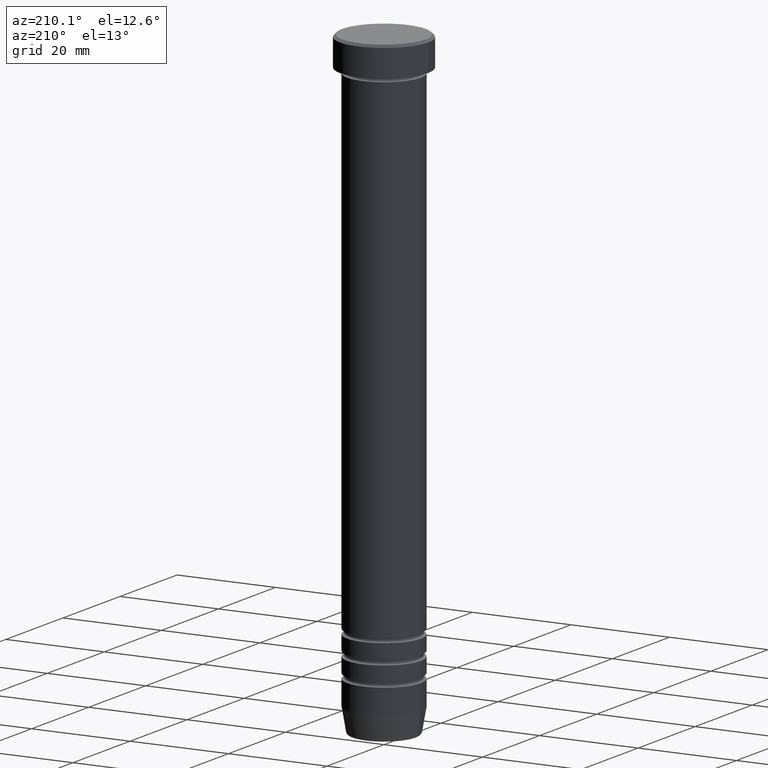
[diagram: clean part render]
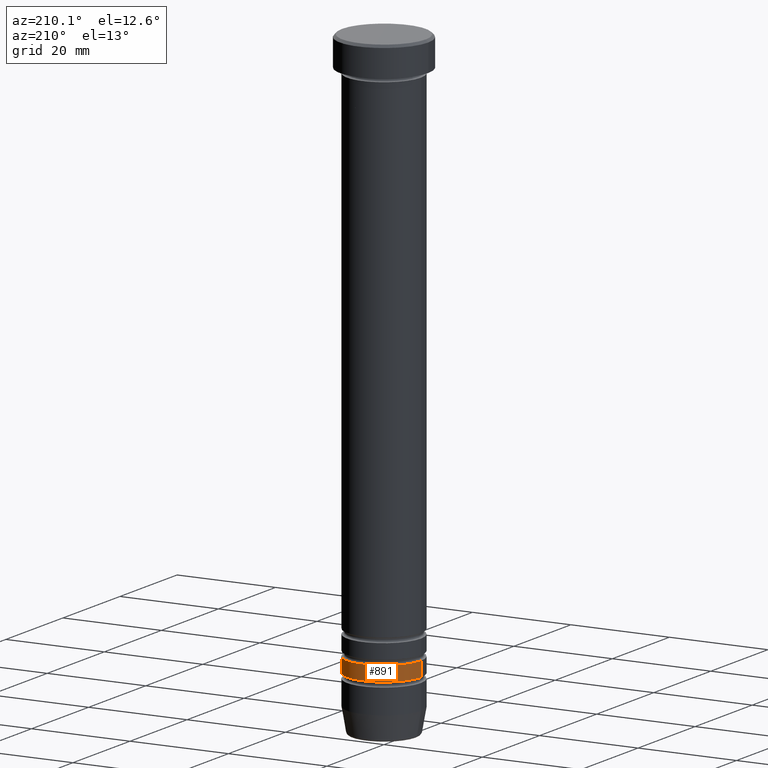
[diagram: same view with one face highlighted and labeled with its STEP entity id]
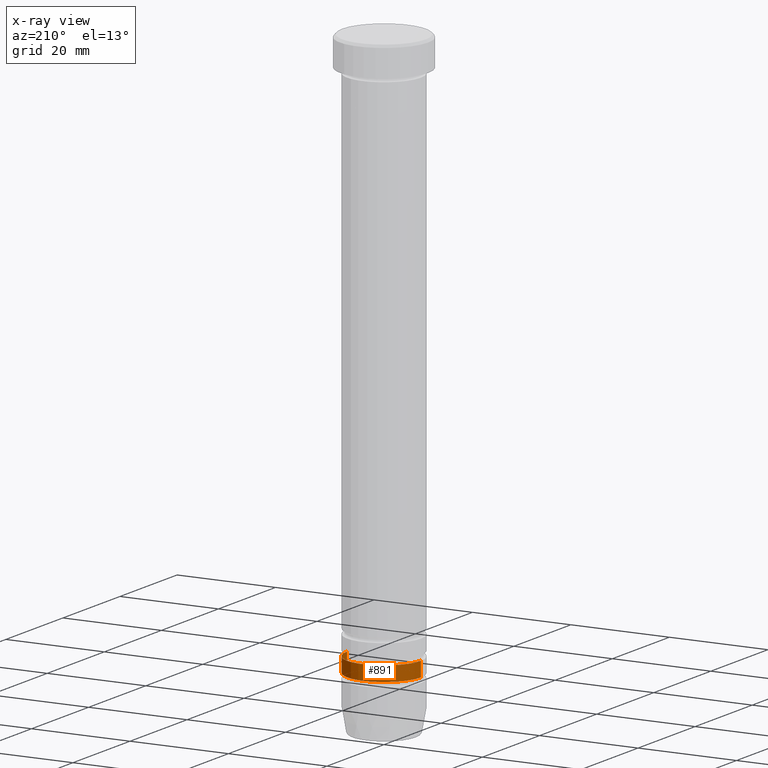
[diagram: x-ray of the same camera — body ghosted, the highlighted face saturated]
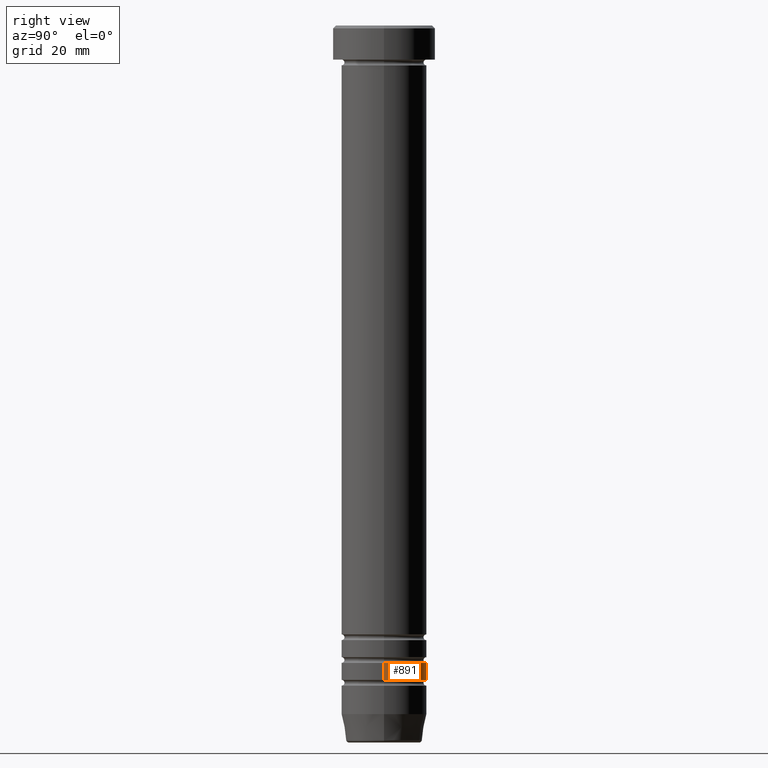
[diagram: same view with one face highlighted and labeled with its STEP entity id]
A machine part, auxiliary view. The second image highlights one B-rep face of the part: STEP entity #891.
The next image is the same camera in x-ray: the body ghosted, the highlighted face saturated — about 0% of this face is hidden behind the body in this view.
A second angle (right view) of the same face is appended — the face is thin or edge-on in the first view.
In plain terms, the highlighted cylindrical surface (partial cylindrical patch) has radius 7.5 mm, axis along (-0, -0, 1).
Its self-contained STEP definition (entity closure, byte-faithful):
#15 = CARTESIAN_POINT ( 'NONE',  ( -7.499999999999998224, 9.184850993605145972E-16, -112.0000000000000142 ) ) ;
#66 = CYLINDRICAL_SURFACE ( 'NONE', #858, 7.499999999999994671 ) ;
#92 = EDGE_CURVE ( 'NONE', #306, #907, #290, .T. ) ;
#125 = CARTESIAN_POINT ( 'NONE',  ( 7.499999999999994671, 0.000000000000000000, 0.000000000000000000 ) ) ;
#166 = DIRECTION ( 'NONE',  ( -0.000000000000000000, -0.000000000000000000, 1.000000000000000000 ) ) ;
#204 = AXIS2_PLACEMENT_3D ( 'NONE', #685, #166, #514 ) ;
#212 = EDGE_LOOP ( 'NONE', ( #572, #895, #568, #840 ) ) ;
#243 = VERTEX_POINT ( 'NONE', #1016 ) ;
#244 = CARTESIAN_POINT ( 'NONE',  ( 0.000000000000000000, 0.000000000000000000, 0.000000000000000000 ) ) ;
#253 = DIRECTION ( 'NONE',  ( -0.000000000000000000, -0.000000000000000000, 1.000000000000000000 ) ) ;
#290 = LINE ( 'NONE', #125, #656 ) ;
#306 = VERTEX_POINT ( 'NONE', #345 ) ;
#313 = AXIS2_PLACEMENT_3D ( 'NONE', #612, #622, #866 ) ;
#339 = LINE ( 'NONE', #1038, #439 ) ;
#345 = CARTESIAN_POINT ( 'NONE',  ( 7.499999999999991118, 0.000000000000000000, -115.0000000000000000 ) ) ;
#439 = VECTOR ( 'NONE', #253, 1000.000000000000000 ) ;
#514 = DIRECTION ( 'NONE',  ( 1.000000000000000000, 0.000000000000000000, 0.000000000000000000 ) ) ;
#532 = VERTEX_POINT ( 'NONE', #15 ) ;
#536 = EDGE_CURVE ( 'NONE', #907, #532, #804, .T. ) ;
#568 = ORIENTED_EDGE ( 'NONE', *, *, #536, .F. ) ;
#572 = ORIENTED_EDGE ( 'NONE', *, *, #996, .T. ) ;
#592 = CARTESIAN_POINT ( 'NONE',  ( 7.499999999999998224, 0.000000000000000000, -112.0000000000000142 ) ) ;
#612 = CARTESIAN_POINT ( 'NONE',  ( 0.000000000000000000, 0.000000000000000000, -112.0000000000000142 ) ) ;
#622 = DIRECTION ( 'NONE',  ( -0.000000000000000000, -0.000000000000000000, 1.000000000000000000 ) ) ;
#656 = VECTOR ( 'NONE', #901, 1000.000000000000000 ) ;
#681 = CIRCLE ( 'NONE', #204, 7.499999999999991118 ) ;
#682 = DIRECTION ( 'NONE',  ( 1.000000000000000000, 0.000000000000000000, 0.000000000000000000 ) ) ;
#685 = CARTESIAN_POINT ( 'NONE',  ( 0.000000000000000000, 0.000000000000000000, -115.0000000000000000 ) ) ;
#804 = CIRCLE ( 'NONE', #313, 7.499999999999998224 ) ;
#840 = ORIENTED_EDGE ( 'NONE', *, *, #92, .F. ) ;
#858 = AXIS2_PLACEMENT_3D ( 'NONE', #244, #935, #682 ) ;
#866 = DIRECTION ( 'NONE',  ( 1.000000000000000000, 0.000000000000000000, 0.000000000000000000 ) ) ;
#891 = ADVANCED_FACE ( 'NONE', ( #1029 ), #66, .T. ) ;
#895 = ORIENTED_EDGE ( 'NONE', *, *, #900, .T. ) ;
#900 = EDGE_CURVE ( 'NONE', #243, #532, #339, .T. ) ;
#901 = DIRECTION ( 'NONE',  ( -0.000000000000000000, -0.000000000000000000, 1.000000000000000000 ) ) ;
#907 = VERTEX_POINT ( 'NONE', #592 ) ;
#935 = DIRECTION ( 'NONE',  ( -0.000000000000000000, -0.000000000000000000, 1.000000000000000000 ) ) ;
#996 = EDGE_CURVE ( 'NONE', #306, #243, #681, .T. ) ;
#1016 = CARTESIAN_POINT ( 'NONE',  ( -7.499999999999991118, 9.184850993605140056E-16, -115.0000000000000000 ) ) ;
#1029 = FACE_OUTER_BOUND ( 'NONE', #212, .T. ) ;
#1038 = CARTESIAN_POINT ( 'NONE',  ( -7.499999999999994671, 9.184850993605142028E-16, 0.000000000000000000 ) ) ;